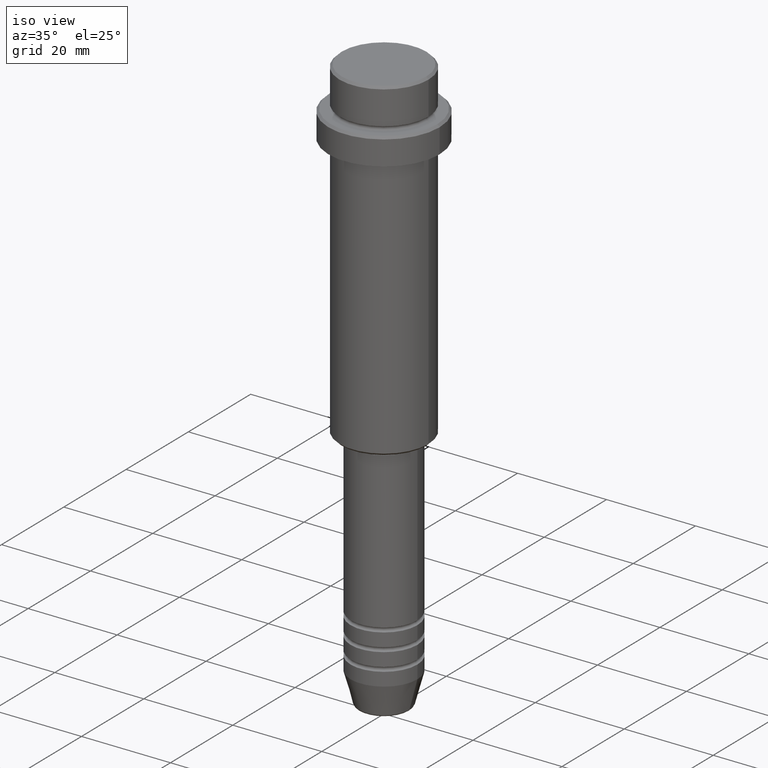
[diagram: clean part render]
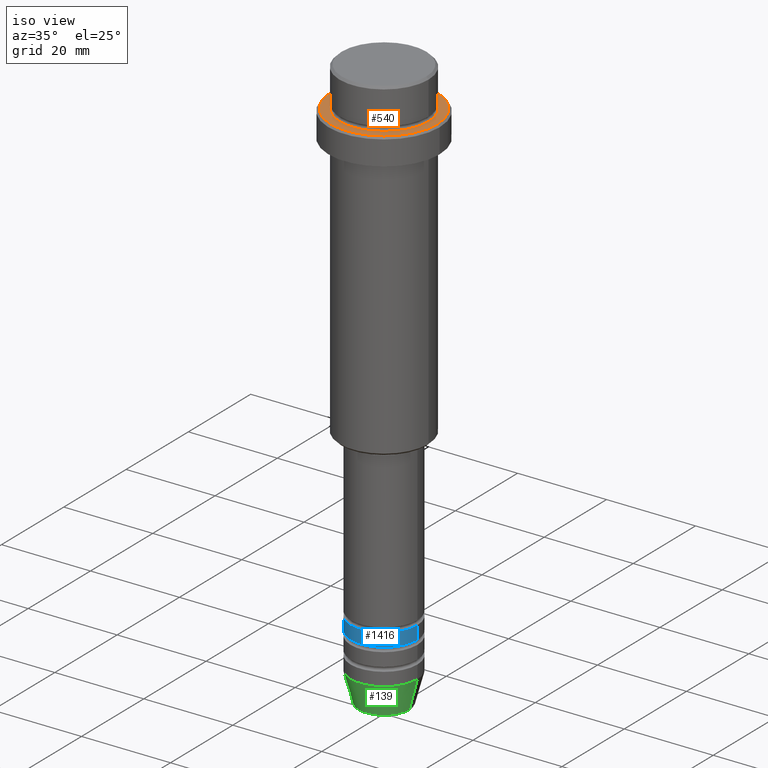
[diagram: same view with three faces highlighted in distinct colors, each labeled with its STEP entity id]
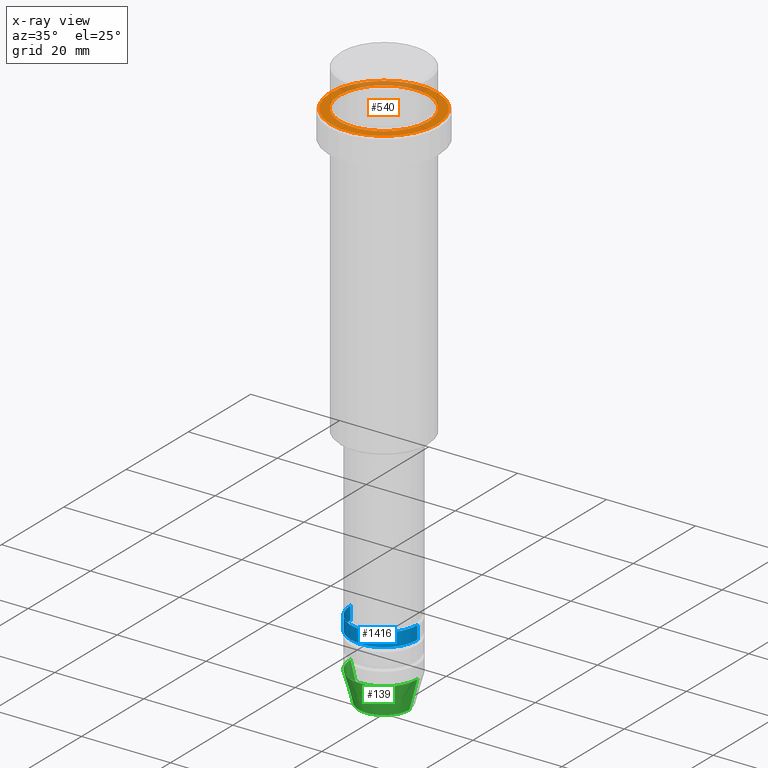
[diagram: x-ray of the same camera — body ghosted, the three highlighted faces saturated]
A machine part, iso view with three faces highlighted in distinct colors.
The next image is the same camera in x-ray (body ghosted, the three faces saturated) — at least one of them is partly hidden behind the body in this view.
Their STEP definitions:

[orange] entity #540 — the highlighted planar face has unit normal (0, -0, 1).
#11 = CARTESIAN_POINT ( 'NONE',  ( 12.00000000000001066, 1.500192328955508326E-15, -9.000000000000000000 ) ) ;
#54 = DIRECTION ( 'NONE',  ( -0.000000000000000000, -0.000000000000000000, 1.000000000000000000 ) ) ;
#74 = ORIENTED_EDGE ( 'NONE', *, *, #1115, .T. ) ;
#97 = PLANE ( 'NONE',  #689 ) ;
#123 = VERTEX_POINT ( 'NONE', #11 ) ;
#184 = EDGE_CURVE ( 'NONE', #1009, #894, #262, .T. ) ;
#203 = DIRECTION ( 'NONE',  ( 0.000000000000000000, 0.000000000000000000, -1.000000000000000000 ) ) ;
#242 = AXIS2_PLACEMENT_3D ( 'NONE', #616, #1256, #930 ) ;
#262 = CIRCLE ( 'NONE', #1277, 9.999999999999992895 ) ;
#290 = VERTEX_POINT ( 'NONE', #889 ) ;
#294 = DIRECTION ( 'NONE',  ( 1.000000000000000000, 0.000000000000000000, 0.000000000000000000 ) ) ;
#405 = CARTESIAN_POINT ( 'NONE',  ( 0.000000000000000000, 9.499999999999992895, -9.000000000000000000 ) ) ;
#407 = ORIENTED_EDGE ( 'NONE', *, *, #184, .T. ) ;
#410 = DIRECTION ( 'NONE',  ( 0.000000000000000000, -0.000000000000000000, 1.000000000000000000 ) ) ;
#414 = EDGE_CURVE ( 'NONE', #894, #1009, #1046, .T. ) ;
#502 = CARTESIAN_POINT ( 'NONE',  ( 0.000000000000000000, 0.000000000000000000, -9.000000000000000000 ) ) ;
#540 = ADVANCED_FACE ( 'NONE', ( #636, #736 ), #97, .T. ) ;
#554 = ORIENTED_EDGE ( 'NONE', *, *, #975, .T. ) ;
#580 = AXIS2_PLACEMENT_3D ( 'NONE', #502, #617, #294 ) ;
#616 = CARTESIAN_POINT ( 'NONE',  ( 0.000000000000000000, 0.000000000000000000, -9.000000000000000000 ) ) ;
#617 = DIRECTION ( 'NONE',  ( 0.000000000000000000, 0.000000000000000000, -1.000000000000000000 ) ) ;
#636 = FACE_OUTER_BOUND ( 'NONE', #1236, .T. ) ;
#683 = CARTESIAN_POINT ( 'NONE',  ( 9.999999999999992895, 0.000000000000000000, -9.000000000000000000 ) ) ;
#686 = CIRCLE ( 'NONE', #242, 12.00000000000001066 ) ;
#689 = AXIS2_PLACEMENT_3D ( 'NONE', #405, #410, #865 ) ;
#736 = FACE_BOUND ( 'NONE', #866, .T. ) ;
#865 = DIRECTION ( 'NONE',  ( 1.000000000000000000, 0.000000000000000000, 0.000000000000000000 ) ) ;
#866 = EDGE_LOOP ( 'NONE', ( #407, #1079 ) ) ;
#889 = CARTESIAN_POINT ( 'NONE',  ( -12.00000000000001066, 0.000000000000000000, -9.000000000000000000 ) ) ;
#894 = VERTEX_POINT ( 'NONE', #1107 ) ;
#930 = DIRECTION ( 'NONE',  ( 1.000000000000000000, 0.000000000000000000, 0.000000000000000000 ) ) ;
#975 = EDGE_CURVE ( 'NONE', #123, #290, #1018, .T. ) ;
#1009 = VERTEX_POINT ( 'NONE', #683 ) ;
#1018 = CIRCLE ( 'NONE', #1111, 12.00000000000001066 ) ;
#1026 = DIRECTION ( 'NONE',  ( 1.000000000000000000, 0.000000000000000000, 0.000000000000000000 ) ) ;
#1046 = CIRCLE ( 'NONE', #580, 9.999999999999992895 ) ;
#1079 = ORIENTED_EDGE ( 'NONE', *, *, #414, .T. ) ;
#1082 = DIRECTION ( 'NONE',  ( 1.000000000000000000, 0.000000000000000000, 0.000000000000000000 ) ) ;
#1087 = CARTESIAN_POINT ( 'NONE',  ( 0.000000000000000000, 0.000000000000000000, -9.000000000000000000 ) ) ;
#1107 = CARTESIAN_POINT ( 'NONE',  ( -9.999999999999992895, 1.224646799147352468E-15, -9.000000000000000000 ) ) ;
#1111 = AXIS2_PLACEMENT_3D ( 'NONE', #1137, #54, #1026 ) ;
#1115 = EDGE_CURVE ( 'NONE', #290, #123, #686, .T. ) ;
#1137 = CARTESIAN_POINT ( 'NONE',  ( 0.000000000000000000, 0.000000000000000000, -9.000000000000000000 ) ) ;
#1236 = EDGE_LOOP ( 'NONE', ( #74, #554 ) ) ;
#1256 = DIRECTION ( 'NONE',  ( -0.000000000000000000, -0.000000000000000000, 1.000000000000000000 ) ) ;
#1277 = AXIS2_PLACEMENT_3D ( 'NONE', #1087, #203, #1082 ) ;

[blue] entity #1416 — the highlighted cylindrical surface (partial cylindrical patch) has radius 7.5 mm, axis along (-0, -0, 1).
#5 = CARTESIAN_POINT ( 'NONE',  ( 7.500000000000000000, 0.000000000000000000, -111.9999999999998863 ) ) ;
#53 = DIRECTION ( 'NONE',  ( -0.000000000000000000, -0.000000000000000000, 1.000000000000000000 ) ) ;
#65 = LINE ( 'NONE', #1286, #822 ) ;
#70 = DIRECTION ( 'NONE',  ( -0.000000000000000000, -0.000000000000000000, 1.000000000000000000 ) ) ;
#109 = CIRCLE ( 'NONE', #897, 7.500000000000000000 ) ;
#118 = ORIENTED_EDGE ( 'NONE', *, *, #1280, .F. ) ;
#224 = EDGE_LOOP ( 'NONE', ( #118, #1001, #647, #941 ) ) ;
#226 = DIRECTION ( 'NONE',  ( -0.000000000000000000, -0.000000000000000000, 1.000000000000000000 ) ) ;
#336 = EDGE_CURVE ( 'NONE', #1029, #552, #109, .T. ) ;
#402 = CARTESIAN_POINT ( 'NONE',  ( -7.500000000000000000, 9.184850993605147944E-16, -114.9999999999999005 ) ) ;
#479 = DIRECTION ( 'NONE',  ( 1.000000000000000000, 0.000000000000000000, 0.000000000000000000 ) ) ;
#523 = CARTESIAN_POINT ( 'NONE',  ( 7.500000000000000000, 0.000000000000000000, -114.9999999999999005 ) ) ;
#543 = DIRECTION ( 'NONE',  ( 1.000000000000000000, 0.000000000000000000, 0.000000000000000000 ) ) ;
#552 = VERTEX_POINT ( 'NONE', #523 ) ;
#557 = DIRECTION ( 'NONE',  ( -0.000000000000000000, -0.000000000000000000, 1.000000000000000000 ) ) ;
#563 = CARTESIAN_POINT ( 'NONE',  ( 0.000000000000000000, 0.000000000000000000, 0.000000000000000000 ) ) ;
#590 = EDGE_CURVE ( 'NONE', #1383, #1195, #800, .T. ) ;
#647 = ORIENTED_EDGE ( 'NONE', *, *, #1098, .T. ) ;
#728 = VECTOR ( 'NONE', #557, 1000.000000000000000 ) ;
#748 = LINE ( 'NONE', #1027, #728 ) ;
#768 = FACE_OUTER_BOUND ( 'NONE', #224, .T. ) ;
#796 = DIRECTION ( 'NONE',  ( -0.000000000000000000, -0.000000000000000000, 1.000000000000000000 ) ) ;
#800 = CIRCLE ( 'NONE', #1094, 7.500000000000000000 ) ;
#822 = VECTOR ( 'NONE', #70, 1000.000000000000000 ) ;
#897 = AXIS2_PLACEMENT_3D ( 'NONE', #1340, #53, #479 ) ;
#911 = CYLINDRICAL_SURFACE ( 'NONE', #1151, 7.500000000000000000 ) ;
#941 = ORIENTED_EDGE ( 'NONE', *, *, #590, .F. ) ;
#994 = CARTESIAN_POINT ( 'NONE',  ( 0.000000000000000000, 0.000000000000000000, -111.9999999999998863 ) ) ;
#1001 = ORIENTED_EDGE ( 'NONE', *, *, #336, .T. ) ;
#1027 = CARTESIAN_POINT ( 'NONE',  ( -7.500000000000000000, 9.184850993605147944E-16, 0.000000000000000000 ) ) ;
#1029 = VERTEX_POINT ( 'NONE', #402 ) ;
#1094 = AXIS2_PLACEMENT_3D ( 'NONE', #994, #226, #543 ) ;
#1098 = EDGE_CURVE ( 'NONE', #552, #1195, #65, .T. ) ;
#1151 = AXIS2_PLACEMENT_3D ( 'NONE', #563, #796, #1245 ) ;
#1195 = VERTEX_POINT ( 'NONE', #5 ) ;
#1245 = DIRECTION ( 'NONE',  ( 1.000000000000000000, 0.000000000000000000, 0.000000000000000000 ) ) ;
#1280 = EDGE_CURVE ( 'NONE', #1029, #1383, #748, .T. ) ;
#1286 = CARTESIAN_POINT ( 'NONE',  ( 7.500000000000000000, 0.000000000000000000, 0.000000000000000000 ) ) ;
#1340 = CARTESIAN_POINT ( 'NONE',  ( 0.000000000000000000, 0.000000000000000000, -114.9999999999999005 ) ) ;
#1350 = CARTESIAN_POINT ( 'NONE',  ( -7.500000000000000000, 9.184850993605147944E-16, -111.9999999999998863 ) ) ;
#1383 = VERTEX_POINT ( 'NONE', #1350 ) ;
#1416 = ADVANCED_FACE ( 'NONE', ( #768 ), #911, .T. ) ;

[green] entity #139 — the highlighted conical surface has half-angle 15 deg.
#10 = VERTEX_POINT ( 'NONE', #621 ) ;
#33 = CIRCLE ( 'NONE', #966, 5.723655072137191269 ) ;
#114 = EDGE_CURVE ( 'NONE', #116, #799, #1321, .T. ) ;
#116 = VERTEX_POINT ( 'NONE', #989 ) ;
#130 = DIRECTION ( 'NONE',  ( 0.2588190451025213501, 0.000000000000000000, 0.9659258262890680902 ) ) ;
#139 = ADVANCED_FACE ( 'NONE', ( #628 ), #791, .T. ) ;
#155 = VECTOR ( 'NONE', #130, 1000.000000000000000 ) ;
#160 = AXIS2_PLACEMENT_3D ( 'NONE', #1193, #759, #1297 ) ;
#165 = DIRECTION ( 'NONE',  ( 1.000000000000000000, 0.000000000000000000, 0.000000000000000000 ) ) ;
#227 = DIRECTION ( 'NONE',  ( -0.2588190451025213501, 3.169619151431772337E-17, 0.9659258262890680902 ) ) ;
#268 = EDGE_CURVE ( 'NONE', #116, #711, #33, .T. ) ;
#309 = ORIENTED_EDGE ( 'NONE', *, *, #963, .T. ) ;
#361 = LINE ( 'NONE', #764, #155 ) ;
#382 = ORIENTED_EDGE ( 'NONE', *, *, #605, .F. ) ;
#538 = ORIENTED_EDGE ( 'NONE', *, *, #114, .F. ) ;
#546 = DIRECTION ( 'NONE',  ( 1.000000000000000000, 0.000000000000000000, 0.000000000000000000 ) ) ;
#555 = DIRECTION ( 'NONE',  ( -0.000000000000000000, -0.000000000000000000, 1.000000000000000000 ) ) ;
#562 = CARTESIAN_POINT ( 'NONE',  ( 0.000000000000000000, 0.000000000000000000, -129.6294095225512422 ) ) ;
#605 = EDGE_CURVE ( 'NONE', #799, #10, #1410, .T. ) ;
#621 = CARTESIAN_POINT ( 'NONE',  ( 7.500000000000000000, 0.000000000000000000, -123.0000000000000000 ) ) ;
#628 = FACE_OUTER_BOUND ( 'NONE', #1343, .T. ) ;
#687 = CARTESIAN_POINT ( 'NONE',  ( -7.500000000000000000, 9.184850993605147944E-16, -123.0000000000000000 ) ) ;
#711 = VERTEX_POINT ( 'NONE', #1008 ) ;
#759 = DIRECTION ( 'NONE',  ( -0.000000000000000000, -0.000000000000000000, 1.000000000000000000 ) ) ;
#762 = CARTESIAN_POINT ( 'NONE',  ( 0.000000000000000000, 0.000000000000000000, -123.0000000000000000 ) ) ;
#764 = CARTESIAN_POINT ( 'NONE',  ( 7.500000000000000000, 0.000000000000000000, -123.0000000000000000 ) ) ;
#791 = CONICAL_SURFACE ( 'NONE', #881, 7.500000000000000000, 0.2617993877991500740 ) ;
#799 = VERTEX_POINT ( 'NONE', #687 ) ;
#861 = CARTESIAN_POINT ( 'NONE',  ( -7.500000000000000000, 9.184850993605147944E-16, -123.0000000000000000 ) ) ;
#881 = AXIS2_PLACEMENT_3D ( 'NONE', #762, #555, #546 ) ;
#909 = DIRECTION ( 'NONE',  ( -0.000000000000000000, -0.000000000000000000, 1.000000000000000000 ) ) ;
#963 = EDGE_CURVE ( 'NONE', #711, #10, #361, .T. ) ;
#966 = AXIS2_PLACEMENT_3D ( 'NONE', #562, #909, #165 ) ;
#989 = CARTESIAN_POINT ( 'NONE',  ( -5.723655072137191269, 8.097153428560735915E-16, -129.6294095225512422 ) ) ;
#1008 = CARTESIAN_POINT ( 'NONE',  ( 5.723655072137191269, 0.000000000000000000, -129.6294095225512422 ) ) ;
#1193 = CARTESIAN_POINT ( 'NONE',  ( 0.000000000000000000, 0.000000000000000000, -123.0000000000000000 ) ) ;
#1297 = DIRECTION ( 'NONE',  ( 1.000000000000000000, 0.000000000000000000, 0.000000000000000000 ) ) ;
#1321 = LINE ( 'NONE', #861, #1355 ) ;
#1343 = EDGE_LOOP ( 'NONE', ( #538, #1400, #309, #382 ) ) ;
#1355 = VECTOR ( 'NONE', #227, 1000.000000000000000 ) ;
#1400 = ORIENTED_EDGE ( 'NONE', *, *, #268, .T. ) ;
#1410 = CIRCLE ( 'NONE', #160, 7.500000000000000000 ) ;